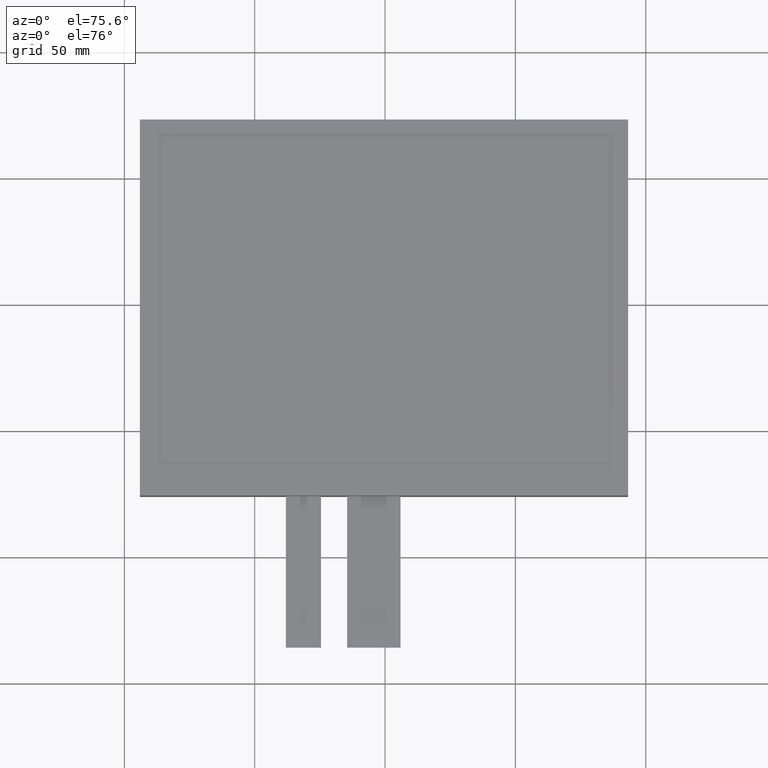
[diagram: clean part render]
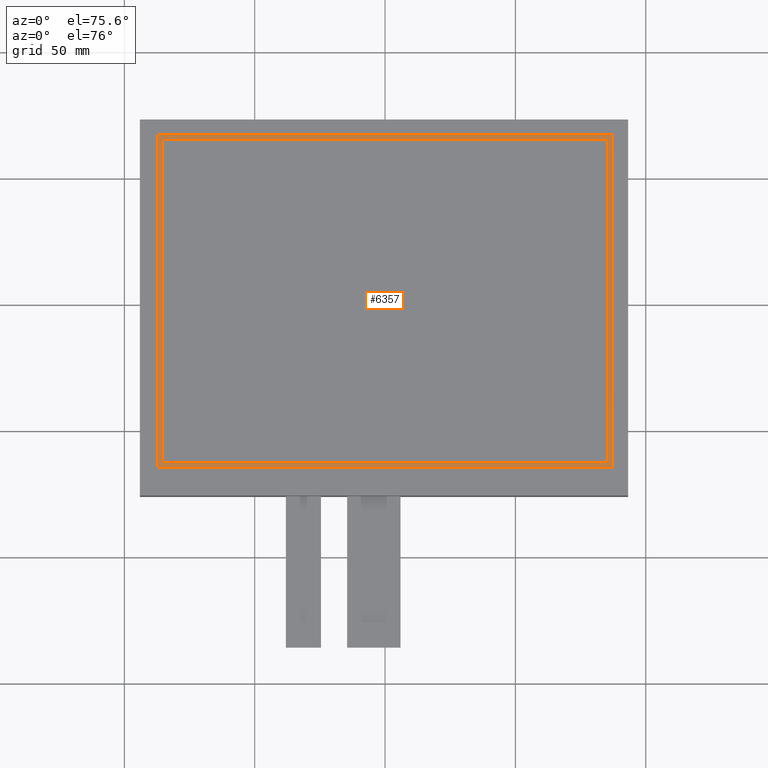
[diagram: same view with one face highlighted and labeled with its STEP entity id]
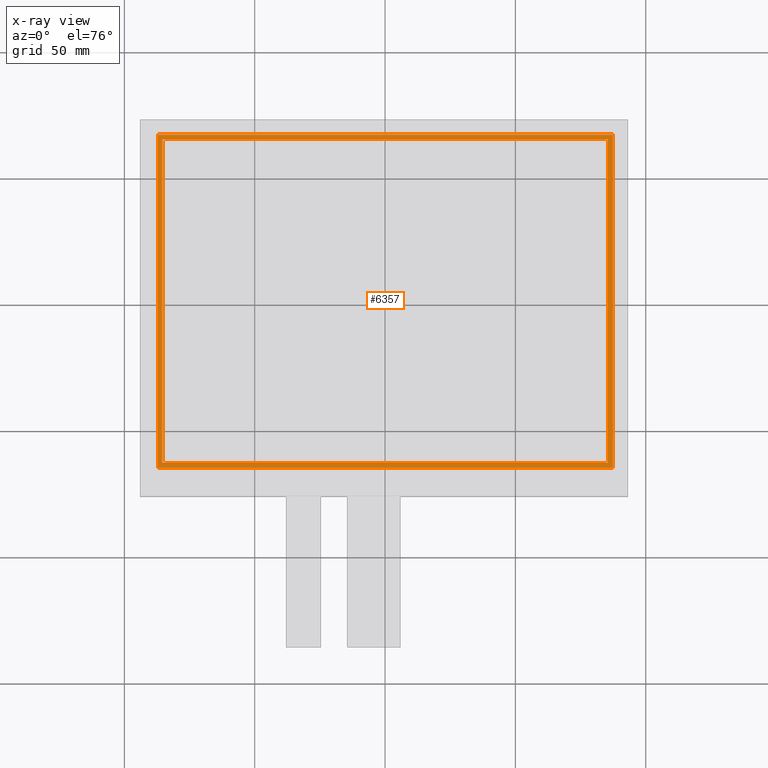
[diagram: x-ray of the same camera — body ghosted, the highlighted face saturated]
A machine part, auxiliary view. The second image highlights one B-rep face of the part: STEP entity #6357.
The next image is the same camera in x-ray: the body ghosted, the highlighted face saturated — about 0% of this face is hidden behind the body in this view.
In plain terms, the highlighted planar face has unit normal (0, 0, -1).
Its self-contained STEP definition (entity closure, byte-faithful):
#125=FACE_BOUND('',#1024,.T.);
#419=PLANE('',#6687);
#721=FACE_OUTER_BOUND('',#1023,.T.);
#1023=EDGE_LOOP('',(#6011,#6012,#6013,#6014));
#1024=EDGE_LOOP('',(#6015,#6016,#6017,#6018));
#1881=LINE('',#9911,#2761);
#1885=LINE('',#9918,#2765);
#1888=LINE('',#9924,#2768);
#1890=LINE('',#9927,#2770);
#1893=LINE('',#9935,#2773);
#1897=LINE('',#9942,#2777);
#1900=LINE('',#9948,#2780);
#1902=LINE('',#9951,#2782);
#2761=VECTOR('',#8133,10.);
#2765=VECTOR('',#8139,10.);
#2768=VECTOR('',#8144,10.);
#2770=VECTOR('',#8148,10.);
#2773=VECTOR('',#8153,10.);
#2777=VECTOR('',#8159,10.);
#2780=VECTOR('',#8164,10.);
#2782=VECTOR('',#8168,10.);
#3373=VERTEX_POINT('',#9908);
#3374=VERTEX_POINT('',#9910);
#3376=VERTEX_POINT('',#9916);
#3378=VERTEX_POINT('',#9922);
#3381=VERTEX_POINT('',#9932);
#3382=VERTEX_POINT('',#9934);
#3384=VERTEX_POINT('',#9940);
#3386=VERTEX_POINT('',#9946);
#4249=EDGE_CURVE('',#3373,#3374,#1881,.T.);
#4253=EDGE_CURVE('',#3376,#3373,#1885,.T.);
#4256=EDGE_CURVE('',#3378,#3376,#1888,.T.);
#4258=EDGE_CURVE('',#3374,#3378,#1890,.T.);
#4261=EDGE_CURVE('',#3381,#3382,#1893,.T.);
#4265=EDGE_CURVE('',#3384,#3381,#1897,.T.);
#4268=EDGE_CURVE('',#3386,#3384,#1900,.T.);
#4270=EDGE_CURVE('',#3382,#3386,#1902,.T.);
#6011=ORIENTED_EDGE('',*,*,#4270,.F.);
#6012=ORIENTED_EDGE('',*,*,#4261,.F.);
#6013=ORIENTED_EDGE('',*,*,#4265,.F.);
#6014=ORIENTED_EDGE('',*,*,#4268,.F.);
#6015=ORIENTED_EDGE('',*,*,#4258,.F.);
#6016=ORIENTED_EDGE('',*,*,#4249,.F.);
#6017=ORIENTED_EDGE('',*,*,#4253,.F.);
#6018=ORIENTED_EDGE('',*,*,#4256,.F.);
#6357=ADVANCED_FACE('',(#721,#125),#419,.F.);
#6687=AXIS2_PLACEMENT_3D('',#9952,#8169,#8170);
#8133=DIRECTION('',(1.,0.,0.));
#8139=DIRECTION('',(1.38561375928257E-16,-1.,0.));
#8144=DIRECTION('',(-1.,0.,0.));
#8148=DIRECTION('',(1.38561375928257E-16,1.,0.));
#8153=DIRECTION('',(-2.69553389893816E-16,1.,0.));
#8159=DIRECTION('',(-1.,-1.52782985040159E-16,0.));
#8164=DIRECTION('',(0.,-1.,0.));
#8168=DIRECTION('',(1.,0.,0.));
#8169=DIRECTION('center_axis',(0.,0.,-1.));
#8170=DIRECTION('ref_axis',(-1.,0.,0.));
#9908=CARTESIAN_POINT('',(-85.45,-64.1,-0.1));
#9910=CARTESIAN_POINT('',(85.45,-64.1,-0.1));
#9911=CARTESIAN_POINT('',(85.45,-64.1,-0.1));
#9916=CARTESIAN_POINT('',(-85.45,64.1,-0.1));
#9918=CARTESIAN_POINT('',(-85.45,-64.1,-0.1));
#9922=CARTESIAN_POINT('',(85.45,64.1,-0.1));
#9924=CARTESIAN_POINT('',(-85.45,64.1,-0.1));
#9927=CARTESIAN_POINT('',(85.45,64.1,-0.1));
#9932=CARTESIAN_POINT('',(-87.15,-65.9,-0.1));
#9934=CARTESIAN_POINT('',(-87.15,65.9,-0.1));
#9935=CARTESIAN_POINT('',(-87.15,65.9,-0.1));
#9940=CARTESIAN_POINT('',(87.25,-65.9,-0.1));
#9942=CARTESIAN_POINT('',(-87.15,-65.9,-0.1));
#9946=CARTESIAN_POINT('',(87.25,65.9,-0.1));
#9948=CARTESIAN_POINT('',(87.25,-65.9,-0.1));
#9951=CARTESIAN_POINT('',(87.25,65.9,-0.1));
#9952=CARTESIAN_POINT('Origin',(0.0499999999999901,2.66453525910038E-14,
-0.1));